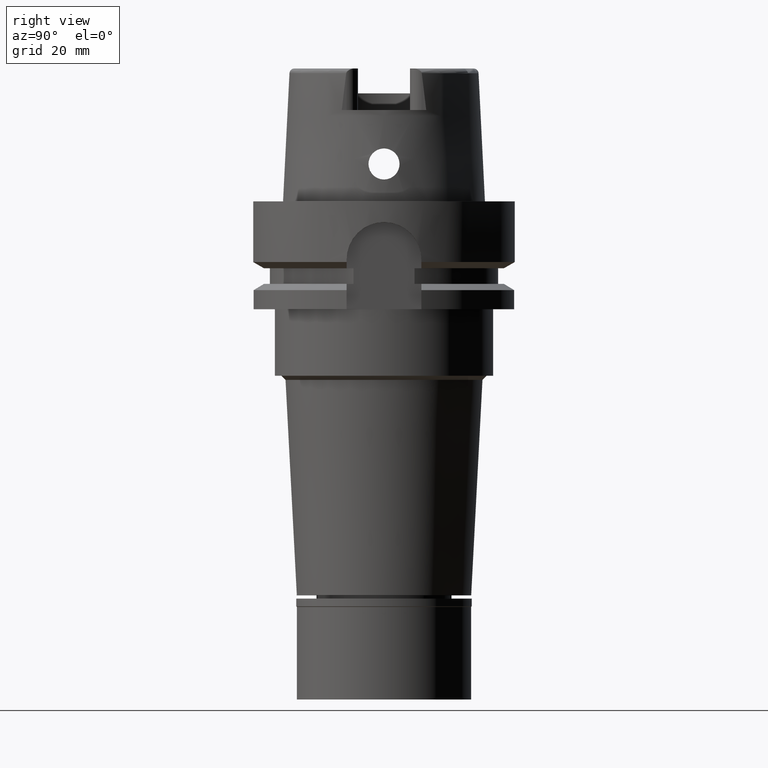
[diagram: clean part render]
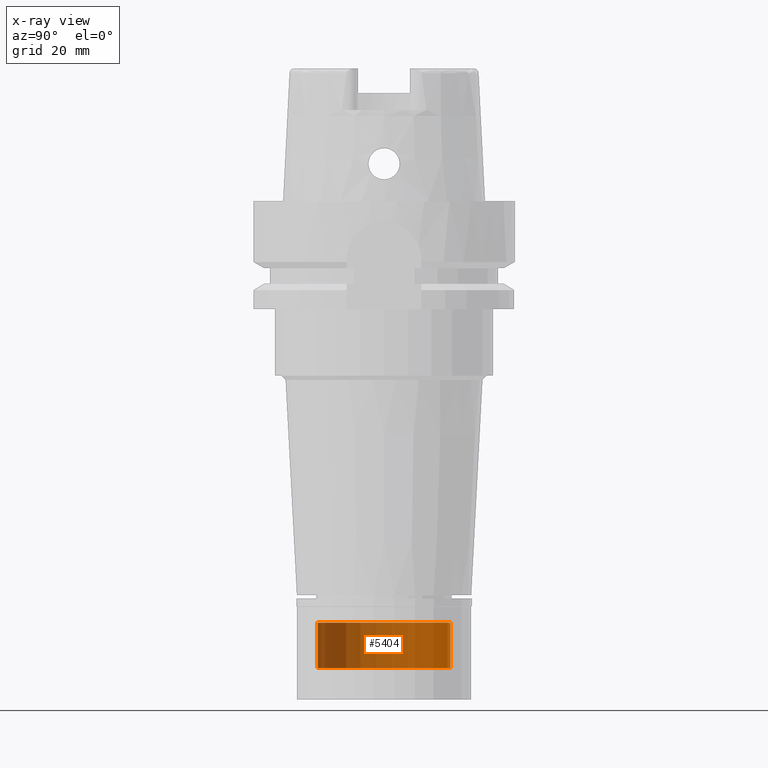
[diagram: x-ray — body ghosted, one internal face saturated and labeled with its STEP entity id]
A machine part, right view, then the same camera in x-ray: the body is ghosted and one INTERNAL B-rep face — a face not visible from any outside direction — is saturated and labeled: STEP entity #5404.
In plain terms, the highlighted cylindrical surface (partial cylindrical patch) has radius 16 mm, axis along (0, 0, 1).
Its self-contained STEP definition (entity closure, byte-faithful):
#91 = CARTESIAN_POINT ( 'NONE',  ( 0.0000000000000000000, -16.00000000000000000, -101.5000000000000000 ) ) ;
#102 = EDGE_CURVE ( 'NONE', #786, #195, #989, .T. ) ;
#141 = LINE ( 'NONE', #1060, #2755 ) ;
#195 = VERTEX_POINT ( 'NONE', #254 ) ;
#248 = VERTEX_POINT ( 'NONE', #4868 ) ;
#254 = CARTESIAN_POINT ( 'NONE',  ( 0.0000000000000000000, -16.00000000000000000, -112.5000000000000000 ) ) ;
#452 = DIRECTION ( 'NONE',  ( 0.0000000000000000000, 0.0000000000000000000, -1.000000000000000000 ) ) ;
#603 = CARTESIAN_POINT ( 'NONE',  ( 0.0000000000000000000, 0.0000000000000000000, 0.0000000000000000000 ) ) ;
#632 = VERTEX_POINT ( 'NONE', #4278 ) ;
#786 = VERTEX_POINT ( 'NONE', #2435 ) ;
#989 = LINE ( 'NONE', #91, #4365 ) ;
#1027 = DIRECTION ( 'NONE',  ( 0.0000000000000000000, 0.0000000000000000000, 1.000000000000000000 ) ) ;
#1060 = CARTESIAN_POINT ( 'NONE',  ( 0.0000000000000000000, 16.00000000000000000, -101.5000000000000000 ) ) ;
#1110 = CARTESIAN_POINT ( 'NONE',  ( 0.0000000000000000000, 0.0000000000000000000, -112.5000000000000000 ) ) ;
#1131 = EDGE_CURVE ( 'NONE', #248, #195, #4404, .T. ) ;
#1327 = AXIS2_PLACEMENT_3D ( 'NONE', #1110, #1027, #2790 ) ;
#1440 = DIRECTION ( 'NONE',  ( 0.0000000000000000000, 1.000000000000000000, 0.0000000000000000000 ) ) ;
#1467 = DIRECTION ( 'NONE',  ( 0.0000000000000000000, 0.0000000000000000000, 1.000000000000000000 ) ) ;
#1633 = AXIS2_PLACEMENT_3D ( 'NONE', #1952, #2775, #2413 ) ;
#1679 = EDGE_LOOP ( 'NONE', ( #2263, #2912, #4563, #3836 ) ) ;
#1899 = EDGE_CURVE ( 'NONE', #786, #632, #2592, .T. ) ;
#1952 = CARTESIAN_POINT ( 'NONE',  ( 0.0000000000000000000, 0.0000000000000000000, -101.5000000000000000 ) ) ;
#2263 = ORIENTED_EDGE ( 'NONE', *, *, #1131, .T. ) ;
#2413 = DIRECTION ( 'NONE',  ( 0.0000000000000000000, -1.000000000000000000, 0.0000000000000000000 ) ) ;
#2435 = CARTESIAN_POINT ( 'NONE',  ( 0.0000000000000000000, -16.00000000000000000, -101.5000000000000000 ) ) ;
#2592 = CIRCLE ( 'NONE', #1633, 16.00000000000000000 ) ;
#2755 = VECTOR ( 'NONE', #452, 1000.000000000000000 ) ;
#2775 = DIRECTION ( 'NONE',  ( 0.0000000000000000000, 0.0000000000000000000, -1.000000000000000000 ) ) ;
#2790 = DIRECTION ( 'NONE',  ( 0.0000000000000000000, 1.000000000000000000, 0.0000000000000000000 ) ) ;
#2912 = ORIENTED_EDGE ( 'NONE', *, *, #102, .F. ) ;
#3244 = AXIS2_PLACEMENT_3D ( 'NONE', #603, #1467, #1440 ) ;
#3557 = FACE_OUTER_BOUND ( 'NONE', #1679, .T. ) ;
#3836 = ORIENTED_EDGE ( 'NONE', *, *, #4955, .T. ) ;
#4278 = CARTESIAN_POINT ( 'NONE',  ( 0.0000000000000000000, 16.00000000000000000, -101.5000000000000000 ) ) ;
#4365 = VECTOR ( 'NONE', #4373, 1000.000000000000000 ) ;
#4373 = DIRECTION ( 'NONE',  ( 0.0000000000000000000, 0.0000000000000000000, -1.000000000000000000 ) ) ;
#4404 = CIRCLE ( 'NONE', #1327, 16.00000000000000000 ) ;
#4563 = ORIENTED_EDGE ( 'NONE', *, *, #1899, .T. ) ;
#4799 = CYLINDRICAL_SURFACE ( 'NONE', #3244, 16.00000000000000000 ) ;
#4868 = CARTESIAN_POINT ( 'NONE',  ( 0.0000000000000000000, 16.00000000000000000, -112.5000000000000000 ) ) ;
#4955 = EDGE_CURVE ( 'NONE', #632, #248, #141, .T. ) ;
#5404 = ADVANCED_FACE ( 'NONE', ( #3557 ), #4799, .T. ) ;